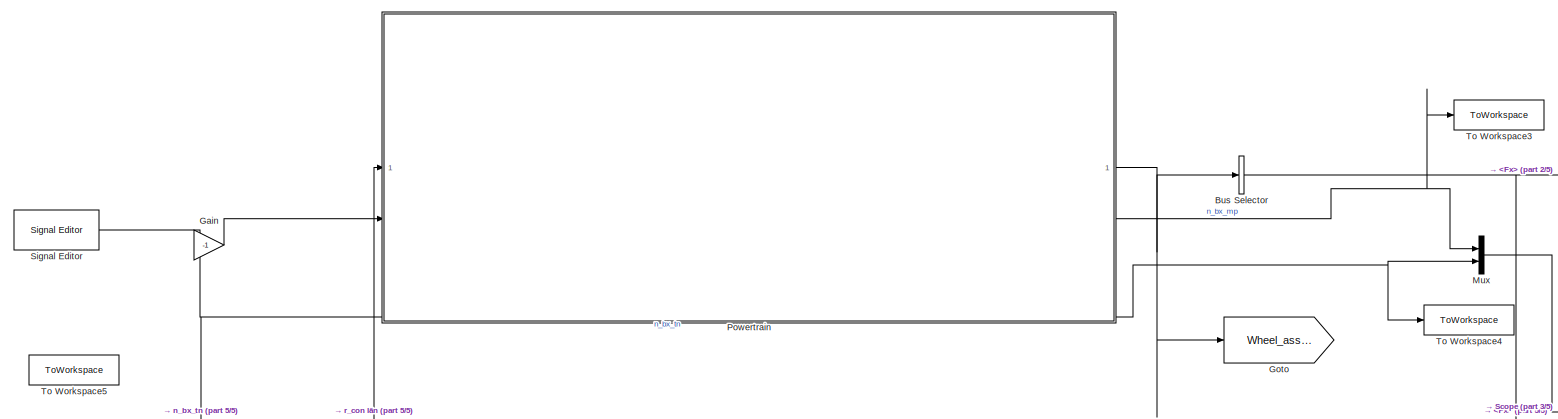
[diagram: root canvas - part 1/5, top left region]
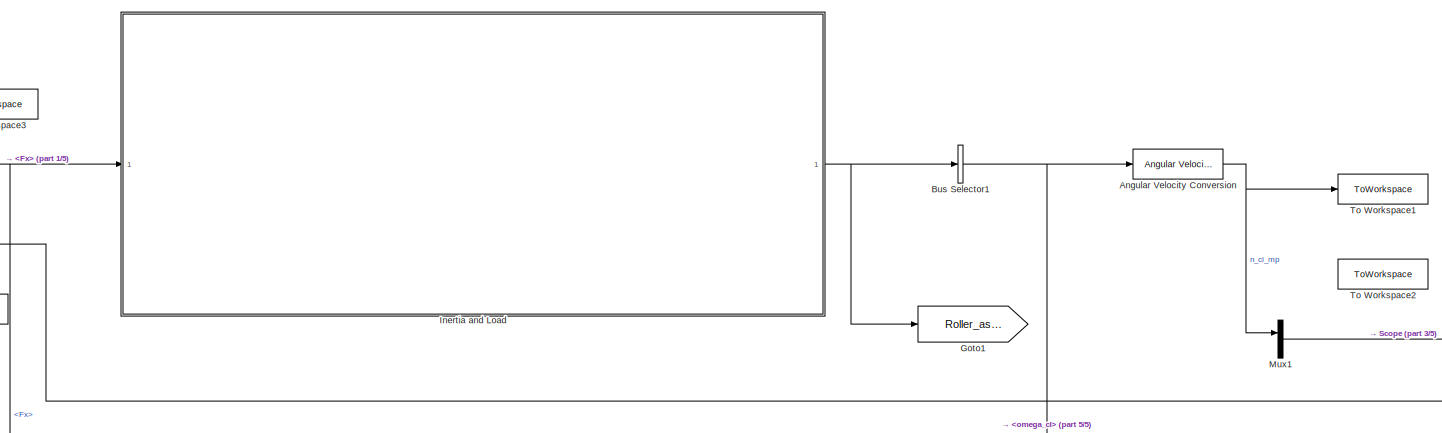
[diagram: root canvas - part 2/5, top right region]
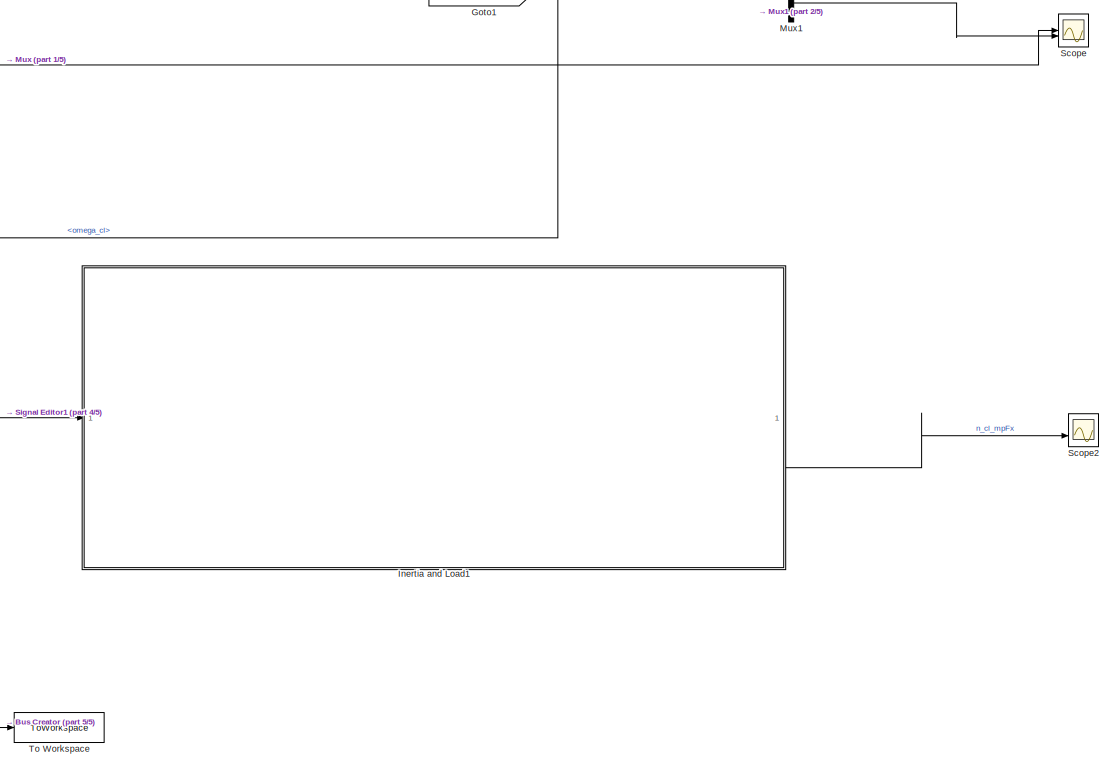
[diagram: root canvas - part 3/5, middle right region]
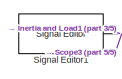
[diagram: root canvas - part 4/5, middle left region]
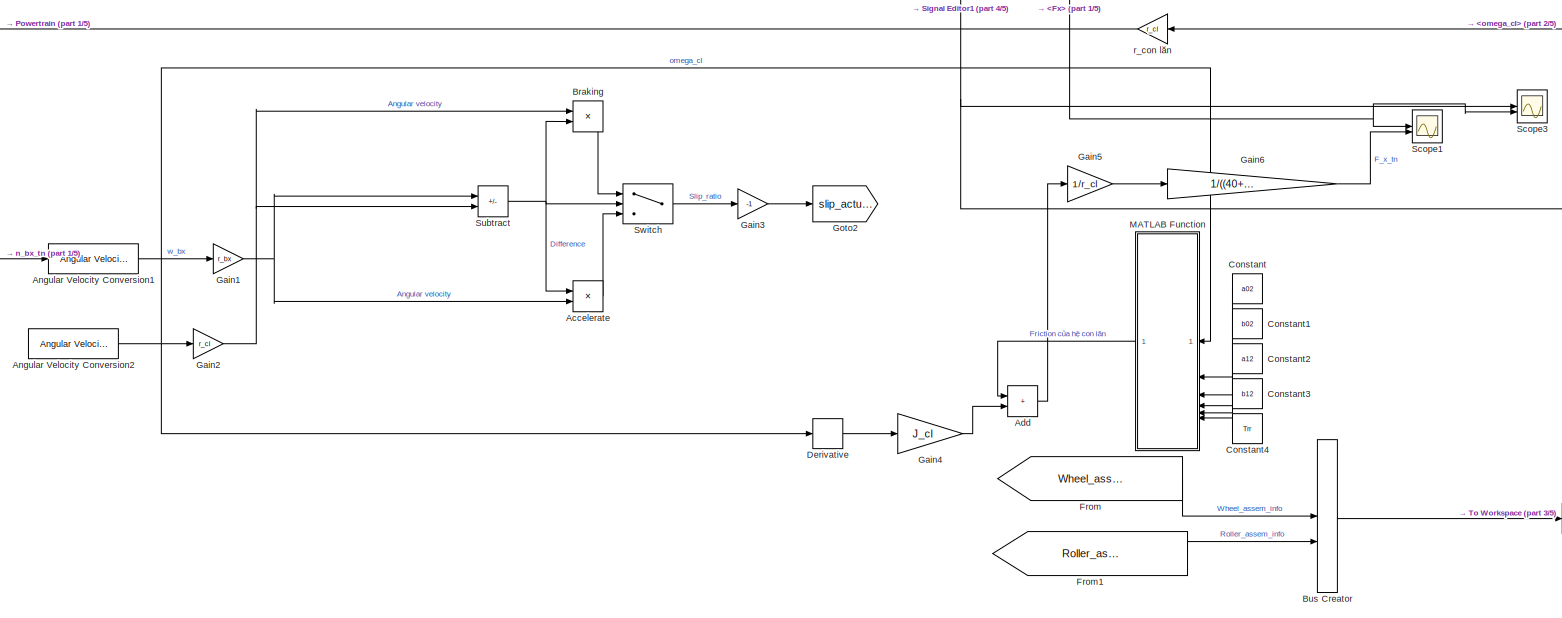
[diagram: root canvas - part 5/5, bottom center region]
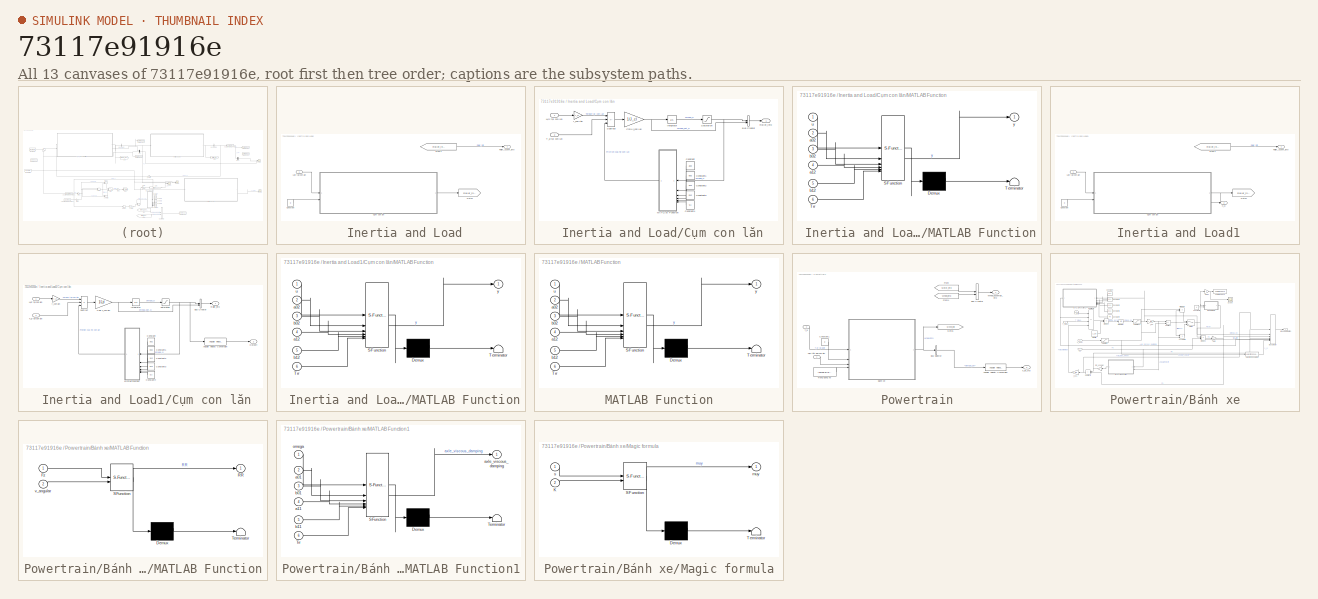
[diagram: thumbnail index - all 13 canvases of the model, root first then tree order]
MODEL slx_73117e91916e
KIND model
CONFIG AbsTol = 1e-3
CONFIG EnableMultiTasking = on
CONFIG FixedStep = 0.0001
CONFIG MaxStep = auto
CONFIG MinStep = auto
CONFIG RelTol = 1e-3
CONFIG SampleTimeConstraint = Unconstrained
CONFIG SolverName = FixedStepAuto
CONFIG StartTime = 0
CONFIG StopTime = 2.08
BLOCK [SubSystem]  Inertia and Load
BLOCK [Constant]  Inertia and Load/Constant
  Value = 0
BLOCK [SubSystem]  Inertia and Load/Cụm con lăn
BLOCK [BusCreator]  Inertia and Load/Cụm con lăn/Bus Creator
  DisplayOption = bar
  InheritFromInputs = on
  Inputs = 2
BLOCK [Gain]  Inertia and Load/Cụm con lăn/Chia J_con lăn
  Gain = 1/J_cl
BLOCK [Constant]  Inertia and Load/Cụm con lăn/Constant
  NameLocation = top
  Value = a02
BLOCK [Constant]  Inertia and Load/Cụm con lăn/Constant1
  NameLocation = top
  Value = b02
BLOCK [Constant]  Inertia and Load/Cụm con lăn/Constant2
  NameLocation = top
  Value = a12
BLOCK [Constant]  Inertia and Load/Cụm con lăn/Constant3
  NameLocation = top
  Value = b12
BLOCK [Constant]  Inertia and Load/Cụm con lăn/Constant4
  NameLocation = top
  Value = Trr
BLOCK [Integrator]  Inertia and Load/Cụm con lăn/Integrator
  InitialCondition = 39.4364
BLOCK [Inport]  Inertia and Load/Cụm con lăn/Lực tại con lăn
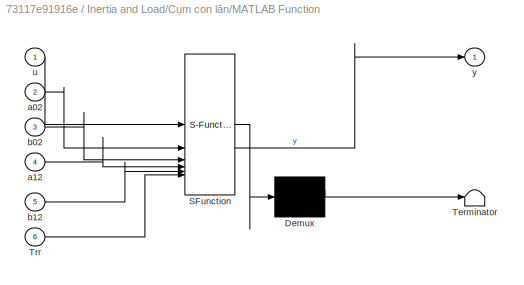
BLOCK [SubSystem]  Inertia and Load/Cụm con lăn/MATLAB Function
  ErrorFcn = Stateflow.Translate.translate
  NameLocation = top
  PermitHierarchicalResolution = ExplicitOnly
  SFBlockType = MATLAB Function
  TreatAsAtomicUnit = on
BLOCK [Demux]  Inertia and Load/Cụm con lăn/MATLAB Function/ Demux 
  Outputs = 1
BLOCK [S-Function]  Inertia and Load/Cụm con lăn/MATLAB Function/ SFunction 
  EnableBusSupport = on
  FunctionName = sf_sfun
  PortCounts = [6 2]
  SFcnIsStateOwnerBlock = off
  SFunctionDeploymentMode = off
  Tag = Stateflow S-Function 4
BLOCK [Terminator]  Inertia and Load/Cụm con lăn/MATLAB Function/ Terminator 
BLOCK [Inport]  Inertia and Load/Cụm con lăn/MATLAB Function/Trr
  Port = 6
BLOCK [Inport]  Inertia and Load/Cụm con lăn/MATLAB Function/a02
  Port = 2
BLOCK [Inport]  Inertia and Load/Cụm con lăn/MATLAB Function/a12
  Port = 4
BLOCK [Inport]  Inertia and Load/Cụm con lăn/MATLAB Function/b02
  Port = 3
BLOCK [Inport]  Inertia and Load/Cụm con lăn/MATLAB Function/b12
  Port = 5
BLOCK [Inport]  Inertia and Load/Cụm con lăn/MATLAB Function/u
BLOCK [Outport]  Inertia and Load/Cụm con lăn/MATLAB Function/y
BLOCK [Outport]  Inertia and Load/Cụm con lăn/Roller_info
BLOCK [Saturate]  Inertia and Load/Cụm con lăn/Saturation
  LowerLimit = 0
  UpperLimit = inf
BLOCK [Sum]  Inertia and Load/Cụm con lăn/Subtract
  IconShape = rectangular
  Inputs = ++-
BLOCK [Inport]  Inertia and Load/Cụm con lăn/T_g tại con lăn
  Port = 2
BLOCK [Gain]  Inertia and Load/Cụm con lăn/r_con lăn
  Gain = r_cl
BLOCK [From]  Inertia and Load/From1
  GotoTag = Roller_info
BLOCK [Goto]  Inertia and Load/Goto1
  GotoTag = Roller_info
BLOCK [Inport]  Inertia and Load/Lực tại con lăn
BLOCK [Outport]  Inertia and Load/Roller_Assem_info
BLOCK [SubSystem]  Inertia and Load1
BLOCK [Constant]  Inertia and Load1/Constant
  Value = 0
BLOCK [SubSystem]  Inertia and Load1/Cụm con lăn
BLOCK [Reference]  Inertia and Load1/Cụm con lăn/Angular Velocity Conversion  REF=aerolibconvert2/Angular Velocity
Conversion
  SourceBlock = aerolibconvert2/Angular Velocity\nConversion
  SourceType = Angular Velocity Conversion
BLOCK [BusCreator]  Inertia and Load1/Cụm con lăn/Bus Creator
  DisplayOption = bar
  InheritFromInputs = on
  Inputs = 2
BLOCK [Gain]  Inertia and Load1/Cụm con lăn/Chia J_con lăn
  Gain = 1/J_cl
BLOCK [Constant]  Inertia and Load1/Cụm con lăn/Constant
  NameLocation = top
  Value = a02
BLOCK [Constant]  Inertia and Load1/Cụm con lăn/Constant1
  NameLocation = top
  Value = b02
BLOCK [Constant]  Inertia and Load1/Cụm con lăn/Constant2
  NameLocation = top
  Value = a12
BLOCK [Constant]  Inertia and Load1/Cụm con lăn/Constant3
  NameLocation = top
  Value = b12
BLOCK [Constant]  Inertia and Load1/Cụm con lăn/Constant4
  NameLocation = top
  Value = Trr
BLOCK [Integrator]  Inertia and Load1/Cụm con lăn/Integrator
  InitialCondition = 39.4364
BLOCK [Inport]  Inertia and Load1/Cụm con lăn/Lực tại con lăn
BLOCK [SubSystem]  Inertia and Load1/Cụm con lăn/MATLAB Function
  ErrorFcn = Stateflow.Translate.translate
  NameLocation = top
  PermitHierarchicalResolution = ExplicitOnly
  SFBlockType = MATLAB Function
  TreatAsAtomicUnit = on
BLOCK [Demux]  Inertia and Load1/Cụm con lăn/MATLAB Function/ Demux 
  Outputs = 1
BLOCK [S-Function]  Inertia and Load1/Cụm con lăn/MATLAB Function/ SFunction 
  EnableBusSupport = on
  FunctionName = sf_sfun
  PortCounts = [6 2]
  SFcnIsStateOwnerBlock = off
  SFunctionDeploymentMode = off
  Tag = Stateflow S-Function 6
BLOCK [Terminator]  Inertia and Load1/Cụm con lăn/MATLAB Function/ Terminator 
BLOCK [Inport]  Inertia and Load1/Cụm con lăn/MATLAB Function/Trr
  Port = 6
BLOCK [Inport]  Inertia and Load1/Cụm con lăn/MATLAB Function/a02
  Port = 2
BLOCK [Inport]  Inertia and Load1/Cụm con lăn/MATLAB Function/a12
  Port = 4
BLOCK [Inport]  Inertia and Load1/Cụm con lăn/MATLAB Function/b02
  Port = 3
BLOCK [Inport]  Inertia and Load1/Cụm con lăn/MATLAB Function/b12
  Port = 5
BLOCK [Inport]  Inertia and Load1/Cụm con lăn/MATLAB Function/u
BLOCK [Outport]  Inertia and Load1/Cụm con lăn/MATLAB Function/y
BLOCK [Outport]  Inertia and Load1/Cụm con lăn/Outport
  Port = 2
BLOCK [Outport]  Inertia and Load1/Cụm con lăn/Roller_info
BLOCK [Saturate]  Inertia and Load1/Cụm con lăn/Saturation
  LowerLimit = 0
  UpperLimit = inf
BLOCK [Sum]  Inertia and Load1/Cụm con lăn/Subtract
  IconShape = rectangular
  Inputs = ++-
BLOCK [Inport]  Inertia and Load1/Cụm con lăn/T_g tại con lăn
  Port = 2
BLOCK [Gain]  Inertia and Load1/Cụm con lăn/r_con lăn
  Gain = r_cl
BLOCK [From]  Inertia and Load1/From1
  GotoTag = Roller_info
BLOCK [Goto]  Inertia and Load1/Goto1
  GotoTag = Roller_info
BLOCK [Inport]  Inertia and Load1/Lực tại con lăn
BLOCK [Outport]  Inertia and Load1/Roller_Assem_info
BLOCK [Outport]  Inertia and Load1/n_cl
  Port = 2
BLOCK [Product] Accelerate
  Inputs = */
BLOCK [Sum] Add
  IconShape = rectangular
BLOCK [Reference] Angular Velocity Conversion  REF=aerolibconvert2/Angular Velocity
Conversion
  SourceBlock = aerolibconvert2/Angular Velocity\nConversion
  SourceType = Angular Velocity Conversion
BLOCK [Reference] Angular Velocity Conversion1  REF=aerolibconvert2/Angular Velocity
Conversion
  SourceBlock = aerolibconvert2/Angular Velocity\nConversion
  SourceType = Angular Velocity Conversion
BLOCK [Reference] Angular Velocity Conversion2  REF=aerolibconvert2/Angular Velocity
Conversion
  SourceBlock = aerolibconvert2/Angular Velocity\nConversion
  SourceType = Angular Velocity Conversion
BLOCK [Product] Braking
  Inputs = /*
BLOCK [BusCreator] Bus Creator
  DisplayOption = bar
  InheritFromInputs = on
  Inputs = 2
BLOCK [BusSelector] Bus Selector
  OutputSignals = Wheel info.Fx
BLOCK [BusSelector] Bus Selector1
  OutputSignals = omega_cl
BLOCK [Constant] Constant
  NameLocation = top
  Value = a02
BLOCK [Constant] Constant1
  NameLocation = top
  Value = b02
BLOCK [Constant] Constant2
  NameLocation = top
  Value = a12
BLOCK [Constant] Constant3
  NameLocation = top
  Value = b12
BLOCK [Constant] Constant4
  NameLocation = top
  Value = Trr
BLOCK [Derivative] Derivative
BLOCK [From] From
  GotoTag = Wheel_assem_info
BLOCK [From] From1
  GotoTag = Roller_assem_info
BLOCK [Gain] Gain
  Gain = -1
BLOCK [Gain] Gain1
  Gain = r_bx
BLOCK [Gain] Gain2
  Gain = r_cl
BLOCK [Gain] Gain3
  Gain = -1
BLOCK [Gain] Gain4
  Gain = J_cl
BLOCK [Gain] Gain5
  Gain = 1/r_cl
BLOCK [Gain] Gain6
  Gain = 1/((40+18.6)*9.81)
BLOCK [Goto] Goto
  GotoTag = Wheel_assem_info
BLOCK [Goto] Goto1
  GotoTag = Roller_assem_info
BLOCK [Goto] Goto2
  GotoTag = slip_actual
  TagVisibility = global
BLOCK [SubSystem] MATLAB Function
  ErrorFcn = Stateflow.Translate.translate
  NameLocation = top
  PermitHierarchicalResolution = ExplicitOnly
  SFBlockType = MATLAB Function
  TreatAsAtomicUnit = on
BLOCK [Demux] MATLAB Function/ Demux 
  Outputs = 1
BLOCK [S-Function] MATLAB Function/ SFunction 
  EnableBusSupport = on
  FunctionName = sf_sfun
  PortCounts = [6 2]
  SFcnIsStateOwnerBlock = off
  SFunctionDeploymentMode = off
  Tag = Stateflow S-Function 5
BLOCK [Terminator] MATLAB Function/ Terminator 
BLOCK [Inport] MATLAB Function/Trr
  Port = 6
BLOCK [Inport] MATLAB Function/a02
  Port = 2
BLOCK [Inport] MATLAB Function/a12
  Port = 4
BLOCK [Inport] MATLAB Function/b02
  Port = 3
BLOCK [Inport] MATLAB Function/b12
  Port = 5
BLOCK [Inport] MATLAB Function/u
BLOCK [Outport] MATLAB Function/y
BLOCK [Mux] Mux
  DisplayOption = bar
  Inputs = 2
BLOCK [Mux] Mux1
  DisplayOption = bar
  Inputs = 2
BLOCK [SubSystem] Powertrain
BLOCK [Reference] Powertrain/Angular Velocity Conversion  REF=aerolibconvert2/Angular Velocity
Conversion
  SourceBlock = aerolibconvert2/Angular Velocity\nConversion
  SourceType = Angular Velocity Conversion
BLOCK [BusCreator] Powertrain/Bus Creator
  DisplayOption = bar
  InheritFromInputs = on
  Inputs = 2
BLOCK [BusSelector] Powertrain/Bus Selector
  OutputSignals = Omega_bx
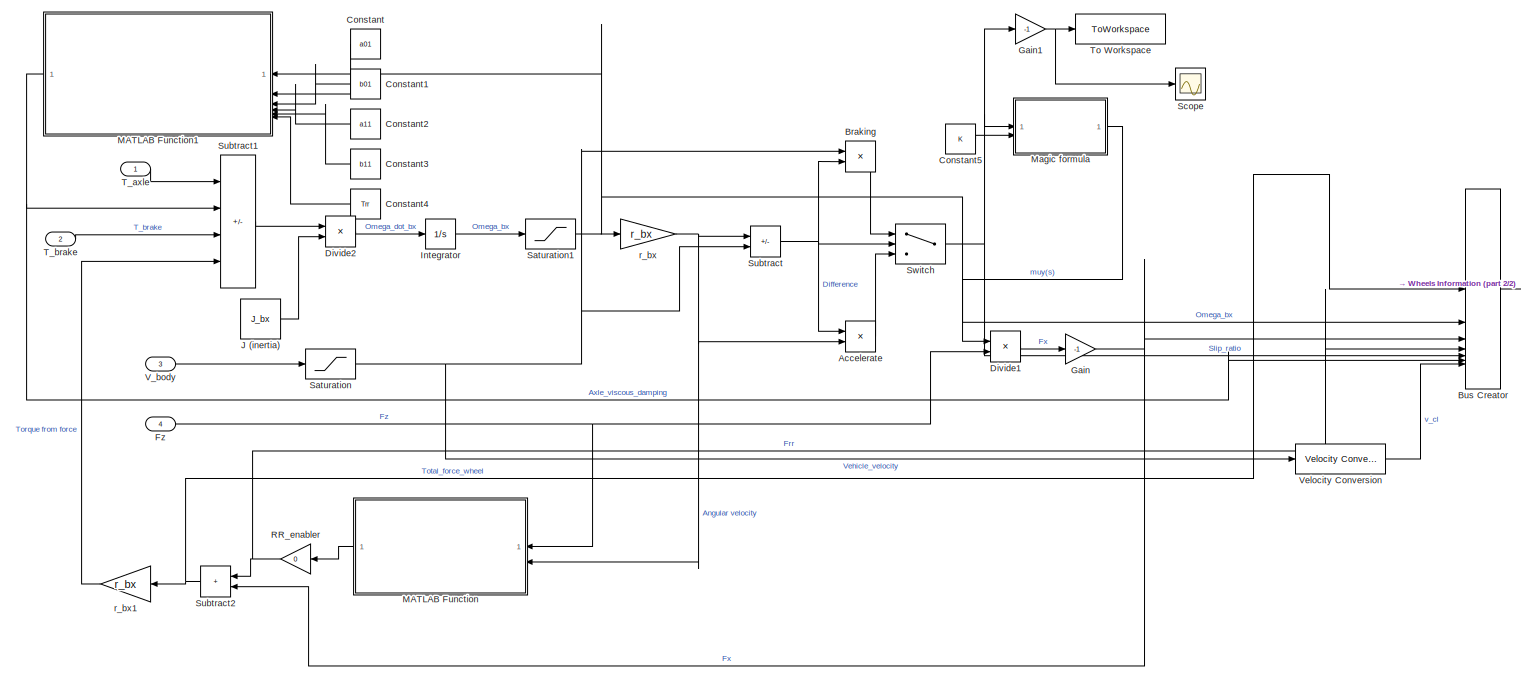
[diagram: Powertrain/Bánh xe - part 1/2, most of the canvas]
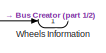
[diagram: Powertrain/Bánh xe - part 2/2, middle right region]
BLOCK [SubSystem] Powertrain/Bánh xe
BLOCK [Product] Powertrain/Bánh xe/Accelerate
  Inputs = */
BLOCK [Product] Powertrain/Bánh xe/Braking
  Inputs = /*
BLOCK [BusCreator] Powertrain/Bánh xe/Bus Creator
  DisplayOption = bar
  InheritFromInputs = on
  Inputs = 7
BLOCK [Constant] Powertrain/Bánh xe/Constant
  NameLocation = top
  Value = a01
BLOCK [Constant] Powertrain/Bánh xe/Constant1
  NameLocation = top
  Value = b01
BLOCK [Constant] Powertrain/Bánh xe/Constant2
  NameLocation = top
  Value = a11
BLOCK [Constant] Powertrain/Bánh xe/Constant3
  NameLocation = top
  Value = b11
BLOCK [Constant] Powertrain/Bánh xe/Constant4
  NameLocation = top
  Value = Trr
BLOCK [Constant] Powertrain/Bánh xe/Constant5
  Value = K
BLOCK [Product] Powertrain/Bánh xe/Divide1
  Inputs = **
BLOCK [Product] Powertrain/Bánh xe/Divide2
  Inputs = */
BLOCK [Inport] Powertrain/Bánh xe/Fz
  Port = 4
BLOCK [Gain] Powertrain/Bánh xe/Gain
  Gain = -1
BLOCK [Gain] Powertrain/Bánh xe/Gain1
  Gain = -1
BLOCK [Integrator] Powertrain/Bánh xe/Integrator
  InitialCondition = 16.3518
BLOCK [Constant] Powertrain/Bánh xe/J (inertia)
  Value = J_bx
BLOCK [SubSystem] Powertrain/Bánh xe/MATLAB Function
  ErrorFcn = Stateflow.Translate.translate
  NameLocation = top
  PermitHierarchicalResolution = ExplicitOnly
  SFBlockType = MATLAB Function
  TreatAsAtomicUnit = on
BLOCK [Demux] Powertrain/Bánh xe/MATLAB Function/ Demux 
  Outputs = 1
BLOCK [S-Function] Powertrain/Bánh xe/MATLAB Function/ SFunction 
  EnableBusSupport = on
  FunctionName = sf_sfun
  PortCounts = [2 2]
  SFcnIsStateOwnerBlock = off
  SFunctionDeploymentMode = off
  Tag = Stateflow S-Function 1
BLOCK [Terminator] Powertrain/Bánh xe/MATLAB Function/ Terminator 
BLOCK [Inport] Powertrain/Bánh xe/MATLAB Function/Fz
BLOCK [Outport] Powertrain/Bánh xe/MATLAB Function/RR
BLOCK [Inport] Powertrain/Bánh xe/MATLAB Function/v_angular
  Port = 2
BLOCK [SubSystem] Powertrain/Bánh xe/MATLAB Function1
  ErrorFcn = Stateflow.Translate.translate
  NameLocation = top
  PermitHierarchicalResolution = ExplicitOnly
  SFBlockType = MATLAB Function
  TreatAsAtomicUnit = on
BLOCK [Demux] Powertrain/Bánh xe/MATLAB Function1/ Demux 
  Outputs = 1
BLOCK [S-Function] Powertrain/Bánh xe/MATLAB Function1/ SFunction 
  EnableBusSupport = on
  FunctionName = sf_sfun
  PortCounts = [6 2]
  SFcnIsStateOwnerBlock = off
  SFunctionDeploymentMode = off
  Tag = Stateflow S-Function 3
BLOCK [Terminator] Powertrain/Bánh xe/MATLAB Function1/ Terminator 
BLOCK [Inport] Powertrain/Bánh xe/MATLAB Function1/Trr
  Port = 6
BLOCK [Inport] Powertrain/Bánh xe/MATLAB Function1/a01
  Port = 2
BLOCK [Inport] Powertrain/Bánh xe/MATLAB Function1/a11
  Port = 4
BLOCK [Outport] Powertrain/Bánh xe/MATLAB Function1/axle_viscous_damping
BLOCK [Inport] Powertrain/Bánh xe/MATLAB Function1/b01
  Port = 3
BLOCK [Inport] Powertrain/Bánh xe/MATLAB Function1/b11
  Port = 5
BLOCK [Inport] Powertrain/Bánh xe/MATLAB Function1/omega
BLOCK [SubSystem] Powertrain/Bánh xe/Magic formula
  ErrorFcn = Stateflow.Translate.translate
  LibrarySourceBlock = simulink/User-Defined\nFunctions/MATLAB Function
  PermitHierarchicalResolution = ExplicitOnly
  SFBlockType = MATLAB Function
  TreatAsAtomicUnit = on
BLOCK [Demux] Powertrain/Bánh xe/Magic formula/ Demux 
  Outputs = 1
BLOCK [S-Function] Powertrain/Bánh xe/Magic formula/ SFunction 
  EnableBusSupport = on
  FunctionName = sf_sfun
  PortCounts = [2 2]
  SFcnIsStateOwnerBlock = off
  SFunctionDeploymentMode = off
  Tag = Stateflow S-Function 2
BLOCK [Terminator] Powertrain/Bánh xe/Magic formula/ Terminator 
BLOCK [Inport] Powertrain/Bánh xe/Magic formula/K
  Port = 2
BLOCK [Outport] Powertrain/Bánh xe/Magic formula/muy
BLOCK [Inport] Powertrain/Bánh xe/Magic formula/s
BLOCK [Gain] Powertrain/Bánh xe/RR_enabler
  Gain = 0
  NameLocation = top
BLOCK [Saturate] Powertrain/Bánh xe/Saturation
  LowerLimit = 0.00000000000000001
  UpperLimit = inf
BLOCK [Saturate] Powertrain/Bánh xe/Saturation1
  LowerLimit = 0.00000000000000001
  UpperLimit = inf
  ZeroCross = off
BLOCK [Scope] Powertrain/Bánh xe/Scope
  Floating = off
  NumInputPorts = 1
  ScopeSpecificationString = Simulink.scopes.TimeScopeBlockCfg('CurrentConfiguration', extmgr.ConfigurationSet(extmgr.Configuration('Core','General UI',true),extmgr.Configuration('Core','Source UI',true),extmgr.Configuration('Sources','WiredSimulink',true,'DataLoggingVariableName','ScopeData1'),extmgr.Configuration('Visuals','Time Domain',true,'SerializedDisplays',{struct('MinYLimReal','-0.11117','MaxYLimReal','0.15015','YLab...<+1511ch>
BLOCK [Sum] Powertrain/Bánh xe/Subtract
  IconShape = rectangular
  Inputs = -+
BLOCK [Sum] Powertrain/Bánh xe/Subtract1
  IconShape = rectangular
  Inputs = +---
BLOCK [Sum] Powertrain/Bánh xe/Subtract2
  IconShape = rectangular
  NameLocation = top
BLOCK [Switch] Powertrain/Bánh xe/Switch
  Criteria = u2 > Threshold
  InputSameDT = off
  SaturateOnIntegerOverflow = off
BLOCK [Inport] Powertrain/Bánh xe/T_axle
BLOCK [Inport] Powertrain/Bánh xe/T_brake
  Port = 2
BLOCK [ToWorkspace] Powertrain/Bánh xe/To Workspace
  FixptAsFi = on
  MaxDataPoints = inf
  SampleTime = -1
  SaveFormat = Timeseries
  VariableName = slip
BLOCK [Inport] Powertrain/Bánh xe/V_body
  Port = 3
BLOCK [Reference] Powertrain/Bánh xe/Velocity Conversion  REF=aerolibconvert2/Velocity Conversion
  SourceBlock = aerolibconvert2/Velocity Conversion
  SourceType = Velocity Conversion
BLOCK [Outport] Powertrain/Bánh xe/Wheels Information
BLOCK [Gain] Powertrain/Bánh xe/r_bx
  Gain = r_bx
BLOCK [Gain] Powertrain/Bánh xe/r_bx1
  Gain = r_bx
  NameLocation = top
BLOCK [Constant] Powertrain/Constant1
  Value = 0
BLOCK [From] Powertrain/From
  GotoTag = Motor_info
BLOCK [From] Powertrain/From1
  GotoTag = Wheel_info
BLOCK [Goto] Powertrain/Goto1
  GotoTag = Wheel_info
BLOCK [Inport] Powertrain/T_b
  Port = 2
BLOCK [Constant] Powertrain/Trong luong xe
  Value = (40+18.6)*9.81
BLOCK [Inport] Powertrain/Vận tốc dài con lăn
  NameLocation = top
BLOCK [Outport] Powertrain/Wheel_assembly_info
BLOCK [Outport] Powertrain/n_bx_mp
  Port = 2
BLOCK [Scope] Scope
  Floating = off
  NumInputPorts = 2
  ScopeSpecificationString = Simulink.scopes.TimeScopeBlockCfg('CurrentConfiguration', extmgr.ConfigurationSet(extmgr.Configuration('Core','General UI',true,'FigureColor',[1 1 1]),extmgr.Configuration('Core','Source UI',true),extmgr.Configuration('Sources','WiredSimulink',true),extmgr.Configuration('Visuals','Time Domain',true,'SerializedDisplays',{struct('MinYLimReal','5.8233','MaxYLimReal','178.0663','YLabelReal','','MinYLi...<+2404ch>
BLOCK [Scope] Scope1
  Floating = off
  NumInputPorts = 2
  ScopeSpecificationString = Simulink.scopes.TimeScopeBlockCfg('CurrentConfiguration', extmgr.ConfigurationSet(extmgr.Configuration('Core','General UI',true),extmgr.Configuration('Core','Source UI',true),extmgr.Configuration('Sources','WiredSimulink',true,'DataLoggingVariableName','ScopeData1'),extmgr.Configuration('Visuals','Time Domain',true,'SerializedDisplays',{struct('MinYLimReal','-830.58372','MaxYLimReal','818.64372','...<+1602ch>
BLOCK [Scope] Scope2
  Floating = off
  NumInputPorts = 2
  ScopeSpecificationString = Simulink.scopes.TimeScopeBlockCfg('CurrentConfiguration', extmgr.ConfigurationSet(extmgr.Configuration('Core','General UI',true),extmgr.Configuration('Core','Source UI',true),extmgr.Configuration('Sources','WiredSimulink',true,'DataLoggingVariableName','ScopeData2'),extmgr.Configuration('Visuals','Time Domain',true,'SerializedDisplays',{struct('MinYLimReal','51.34389','MaxYLimReal','419.32103','YL...<+1514ch>
BLOCK [Scope] Scope3
  Floating = off
  NumInputPorts = 2
  ScopeSpecificationString = Simulink.scopes.TimeScopeBlockCfg('CurrentConfiguration', extmgr.ConfigurationSet(extmgr.Configuration('Core','General UI',true),extmgr.Configuration('Core','Source UI',true),extmgr.Configuration('Sources','WiredSimulink',true,'DataLoggingVariableName','ScopeData3'),extmgr.Configuration('Visuals','Time Domain',true,'SerializedDisplays',{struct('MinYLimReal','-6475.18087','MaxYLimReal','1173.14674'...<+1528ch>
BLOCK [Reference] Signal Editor  REF=SignalEditorBlockLib/Signal Editor
  LibrarySourceBlock = simulink/Sources/Signal Editor
  SourceBlock = SignalEditorBlockLib/Signal Editor
  SourceType = SignalEditor
  UserDataPersistent = on
BLOCK [Reference] Signal Editor1  REF=SignalEditorBlockLib/Signal Editor
  LibrarySourceBlock = simulink/Sources/Signal Editor
  SourceBlock = SignalEditorBlockLib/Signal Editor
  SourceType = SignalEditor
  UserDataPersistent = on
BLOCK [Sum] Subtract
  IconShape = rectangular
  Inputs = -+
BLOCK [Switch] Switch
  Criteria = u2 > Threshold
  InputSameDT = off
  SaturateOnIntegerOverflow = off
BLOCK [ToWorkspace] To Workspace
  FixptAsFi = on
  MaxDataPoints = inf
  SampleTime = -1
  SaveFormat = Timeseries
  VariableName = Slip
BLOCK [ToWorkspace] To Workspace1
  FixptAsFi = on
  MaxDataPoints = inf
  SampleTime = -1
  SaveFormat = Timeseries
  VariableName = n_cl_mp
BLOCK [ToWorkspace] To Workspace2
  FixptAsFi = on
  MaxDataPoints = inf
  SampleTime = -1
  SaveFormat = Timeseries
  VariableName = n_cl_tn
BLOCK [ToWorkspace] To Workspace3
  FixptAsFi = on
  MaxDataPoints = inf
  SampleTime = -1
  SaveFormat = Timeseries
  VariableName = n_bx_mp
BLOCK [ToWorkspace] To Workspace4
  FixptAsFi = on
  MaxDataPoints = inf
  SampleTime = -1
  SaveFormat = Timeseries
  VariableName = n_bx_tn
BLOCK [ToWorkspace] To Workspace5
  FixptAsFi = on
  MaxDataPoints = inf
  SampleTime = -1
  SaveFormat = Timeseries
  VariableName = T_b
BLOCK [Gain] r_con lăn
  Gain = r_cl
  NameLocation = top
LINE  Inertia and Load/Constant:1 ->  Inertia and Load/Cụm con lăn:2
LINE  Inertia and Load/Cụm con lăn/Bus Creator:1 ->  Inertia and Load/Cụm con lăn/Roller_info:1
NET  Inertia and Load/Cụm con lăn/Chia J_con lăn:1 ->  Inertia and Load/Cụm con lăn/Bus Creator:2,  Inertia and Load/Cụm con lăn/Integrator:1
LINE  Inertia and Load/Cụm con lăn/Constant1:1 ->  Inertia and Load/Cụm con lăn/MATLAB Function:3
LINE  Inertia and Load/Cụm con lăn/Constant2:1 ->  Inertia and Load/Cụm con lăn/MATLAB Function:4
LINE  Inertia and Load/Cụm con lăn/Constant3:1 ->  Inertia and Load/Cụm con lăn/MATLAB Function:5
LINE  Inertia and Load/Cụm con lăn/Constant4:1 ->  Inertia and Load/Cụm con lăn/MATLAB Function:6
LINE  Inertia and Load/Cụm con lăn/Constant:1 ->  Inertia and Load/Cụm con lăn/MATLAB Function:2
LINE  Inertia and Load/Cụm con lăn/Integrator:1 ->  Inertia and Load/Cụm con lăn/Saturation:1
LINE  Inertia and Load/Cụm con lăn/Lực tại con lăn:1 ->  Inertia and Load/Cụm con lăn/r_con lăn:1
LINE  Inertia and Load/Cụm con lăn/MATLAB Function:1 ->  Inertia and Load/Cụm con lăn/Subtract:3
NET  Inertia and Load/Cụm con lăn/Saturation:1 ->  Inertia and Load/Cụm con lăn/Bus Creator:1,  Inertia and Load/Cụm con lăn/MATLAB Function:1
LINE  Inertia and Load/Cụm con lăn/Subtract:1 ->  Inertia and Load/Cụm con lăn/Chia J_con lăn:1
LINE  Inertia and Load/Cụm con lăn/T_g tại con lăn:1 ->  Inertia and Load/Cụm con lăn/Subtract:2
LINE  Inertia and Load/Cụm con lăn/r_con lăn:1 ->  Inertia and Load/Cụm con lăn/Subtract:1
LINE  Inertia and Load/Cụm con lăn:1 ->  Inertia and Load/Goto1:1
LINE  Inertia and Load/From1:1 ->  Inertia and Load/Roller_Assem_info:1
LINE  Inertia and Load/Lực tại con lăn:1 ->  Inertia and Load/Cụm con lăn:1
LINE  Inertia and Load1/Constant:1 ->  Inertia and Load1/Cụm con lăn:2
LINE  Inertia and Load1/Cụm con lăn/Angular Velocity Conversion:1 ->  Inertia and Load1/Cụm con lăn/Outport:1
LINE  Inertia and Load1/Cụm con lăn/Bus Creator:1 ->  Inertia and Load1/Cụm con lăn/Roller_info:1
NET  Inertia and Load1/Cụm con lăn/Chia J_con lăn:1 ->  Inertia and Load1/Cụm con lăn/Bus Creator:2,  Inertia and Load1/Cụm con lăn/Integrator:1
LINE  Inertia and Load1/Cụm con lăn/Constant1:1 ->  Inertia and Load1/Cụm con lăn/MATLAB Function:3
LINE  Inertia and Load1/Cụm con lăn/Constant2:1 ->  Inertia and Load1/Cụm con lăn/MATLAB Function:4
LINE  Inertia and Load1/Cụm con lăn/Constant3:1 ->  Inertia and Load1/Cụm con lăn/MATLAB Function:5
LINE  Inertia and Load1/Cụm con lăn/Constant4:1 ->  Inertia and Load1/Cụm con lăn/MATLAB Function:6
LINE  Inertia and Load1/Cụm con lăn/Constant:1 ->  Inertia and Load1/Cụm con lăn/MATLAB Function:2
LINE  Inertia and Load1/Cụm con lăn/Integrator:1 ->  Inertia and Load1/Cụm con lăn/Saturation:1
LINE  Inertia and Load1/Cụm con lăn/Lực tại con lăn:1 ->  Inertia and Load1/Cụm con lăn/r_con lăn:1
LINE  Inertia and Load1/Cụm con lăn/MATLAB Function:1 ->  Inertia and Load1/Cụm con lăn/Subtract:3
NET  Inertia and Load1/Cụm con lăn/Saturation:1 ->  Inertia and Load1/Cụm con lăn/Angular Velocity Conversion:1,  Inertia and Load1/Cụm con lăn/Bus Creator:1,  Inertia and Load1/Cụm con lăn/MATLAB Function:1
LINE  Inertia and Load1/Cụm con lăn/Subtract:1 ->  Inertia and Load1/Cụm con lăn/Chia J_con lăn:1
LINE  Inertia and Load1/Cụm con lăn/T_g tại con lăn:1 ->  Inertia and Load1/Cụm con lăn/Subtract:2
LINE  Inertia and Load1/Cụm con lăn/r_con lăn:1 ->  Inertia and Load1/Cụm con lăn/Subtract:1
LINE  Inertia and Load1/Cụm con lăn:1 ->  Inertia and Load1/Goto1:1
LINE  Inertia and Load1/Cụm con lăn:2 ->  Inertia and Load1/n_cl:1
LINE  Inertia and Load1/From1:1 ->  Inertia and Load1/Roller_Assem_info:1
LINE  Inertia and Load1/Lực tại con lăn:1 ->  Inertia and Load1/Cụm con lăn:1
LINE  Inertia and Load1:2 -> Scope2:2
NET  Inertia and Load:1 -> Bus Selector1:1, Goto1:1
LINE Accelerate:1 -> Switch:3
LINE Add:1 -> Gain5:1
LINE Angular Velocity Conversion1:1 -> Gain1:1
NET Angular Velocity Conversion2:1 -> Derivative:1, Gain2:1, MATLAB Function:1
NET Angular Velocity Conversion:1 -> Mux1:1, To Workspace1:1
LINE Braking:1 -> Switch:1
LINE Bus Creator:1 -> To Workspace:1
NET Bus Selector1:1 -> Angular Velocity Conversion:1, r_con lăn:1
NET Bus Selector:1 ->  Inertia and Load:1, Scope1:1, Scope3:2
LINE Constant1:1 -> MATLAB Function:3
LINE Constant2:1 -> MATLAB Function:4
LINE Constant3:1 -> MATLAB Function:5
LINE Constant4:1 -> MATLAB Function:6
LINE Constant:1 -> MATLAB Function:2
LINE Derivative:1 -> Gain4:1
LINE From1:1 -> Bus Creator:2
LINE From:1 -> Bus Creator:1
NET Gain1:1 -> Accelerate:2, Subtract:1
NET Gain2:1 -> Braking:1, Subtract:2
LINE Gain3:1 -> Goto2:1
LINE Gain4:1 -> Add:2
LINE Gain5:1 -> Gain6:1
LINE Gain6:1 -> Scope1:2
LINE Gain:1 -> Powertrain:2
LINE MATLAB Function:1 -> Add:1
LINE Mux1:1 -> Scope:2
LINE Mux:1 -> Scope:1
LINE Powertrain/Angular Velocity Conversion:1 -> Powertrain/n_bx_mp:1
LINE Powertrain/Bus Creator:1 -> Powertrain/Wheel_assembly_info:1
LINE Powertrain/Bus Selector:1 -> Powertrain/Angular Velocity Conversion:1
LINE Powertrain/Bánh xe/Accelerate:1 -> Powertrain/Bánh xe/Switch:3
LINE Powertrain/Bánh xe/Braking:1 -> Powertrain/Bánh xe/Switch:1
LINE Powertrain/Bánh xe/Bus Creator:1 -> Powertrain/Bánh xe/Wheels Information:1
LINE Powertrain/Bánh xe/Constant1:1 -> Powertrain/Bánh xe/MATLAB Function1:3
LINE Powertrain/Bánh xe/Constant2:1 -> Powertrain/Bánh xe/MATLAB Function1:4
LINE Powertrain/Bánh xe/Constant3:1 -> Powertrain/Bánh xe/MATLAB Function1:5
LINE Powertrain/Bánh xe/Constant4:1 -> Powertrain/Bánh xe/MATLAB Function1:6
LINE Powertrain/Bánh xe/Constant5:1 -> Powertrain/Bánh xe/Magic formula:2
LINE Powertrain/Bánh xe/Constant:1 -> Powertrain/Bánh xe/MATLAB Function1:2
LINE Powertrain/Bánh xe/Divide1:1 -> Powertrain/Bánh xe/Gain:1
LINE Powertrain/Bánh xe/Divide2:1 -> Powertrain/Bánh xe/Integrator:1
NET Powertrain/Bánh xe/Fz:1 -> Powertrain/Bánh xe/Divide1:2, Powertrain/Bánh xe/MATLAB Function:1
NET Powertrain/Bánh xe/Gain1:1 -> Powertrain/Bánh xe/Scope:1, Powertrain/Bánh xe/To Workspace:1
NET Powertrain/Bánh xe/Gain:1 -> Powertrain/Bánh xe/Bus Creator:3, Powertrain/Bánh xe/Subtract2:2
LINE Powertrain/Bánh xe/Integrator:1 -> Powertrain/Bánh xe/Saturation1:1
LINE Powertrain/Bánh xe/J (inertia):1 -> Powertrain/Bánh xe/Divide2:2
NET Powertrain/Bánh xe/MATLAB Function1:1 -> Powertrain/Bánh xe/Bus Creator:6, Powertrain/Bánh xe/Subtract1:2
LINE Powertrain/Bánh xe/MATLAB Function:1 -> Powertrain/Bánh xe/RR_enabler:1
LINE Powertrain/Bánh xe/Magic formula:1 -> Powertrain/Bánh xe/Divide1:1
NET Powertrain/Bánh xe/RR_enabler:1 -> Powertrain/Bánh xe/Bus Creator:4, Powertrain/Bánh xe/Subtract2:1
NET Powertrain/Bánh xe/Saturation1:1 -> Powertrain/Bánh xe/Bus Creator:2, Powertrain/Bánh xe/MATLAB Function1:1, Powertrain/Bánh xe/r_bx:1
NET Powertrain/Bánh xe/Saturation:1 -> Powertrain/Bánh xe/Braking:1, Powertrain/Bánh xe/Subtract:2, Powertrain/Bánh xe/Velocity Conversion:1
LINE Powertrain/Bánh xe/Subtract1:1 -> Powertrain/Bánh xe/Divide2:1
NET Powertrain/Bánh xe/Subtract2:1 -> Powertrain/Bánh xe/Bus Creator:1, Powertrain/Bánh xe/r_bx1:1
NET Powertrain/Bánh xe/Subtract:1 -> Powertrain/Bánh xe/Accelerate:1, Powertrain/Bánh xe/Braking:2, Powertrain/Bánh xe/Switch:2
NET Powertrain/Bánh xe/Switch:1 -> Powertrain/Bánh xe/Bus Creator:5, Powertrain/Bánh xe/Gain1:1, Powertrain/Bánh xe/Magic formula:1
LINE Powertrain/Bánh xe/T_axle:1 -> Powertrain/Bánh xe/Subtract1:1
LINE Powertrain/Bánh xe/T_brake:1 -> Powertrain/Bánh xe/Subtract1:3
LINE Powertrain/Bánh xe/V_body:1 -> Powertrain/Bánh xe/Saturation:1
LINE Powertrain/Bánh xe/Velocity Conversion:1 -> Powertrain/Bánh xe/Bus Creator:7
LINE Powertrain/Bánh xe/r_bx1:1 -> Powertrain/Bánh xe/Subtract1:4
NET Powertrain/Bánh xe/r_bx:1 -> Powertrain/Bánh xe/Accelerate:2, Powertrain/Bánh xe/MATLAB Function:2, Powertrain/Bánh xe/Subtract:1
NET Powertrain/Bánh xe:1 -> Powertrain/Bus Selector:1, Powertrain/Goto1:1
LINE Powertrain/Constant1:1 -> Powertrain/Bánh xe:2
LINE Powertrain/From1:1 -> Powertrain/Bus Creator:2
LINE Powertrain/From:1 -> Powertrain/Bus Creator:1
LINE Powertrain/T_b:1 -> Powertrain/Bánh xe:1
LINE Powertrain/Trong luong xe:1 -> Powertrain/Bánh xe:4
LINE Powertrain/Vận tốc dài con lăn:1 -> Powertrain/Bánh xe:3
NET Powertrain:1 -> Bus Selector:1, Goto:1
NET Powertrain:2 -> Mux:1, To Workspace3:1
NET Signal Editor1:1 ->  Inertia and Load1:1, Scope3:1
NET Signal Editor:1 -> Angular Velocity Conversion1:1, Mux:2, To Workspace4:1
NET Subtract:1 -> Accelerate:1, Braking:2, Switch:2
LINE Switch:1 -> Gain3:1
LINE r_con lăn:1 -> Powertrain:1
note: NET lines group one-source signal fan-out (src -> all destinations, sorted); 1:1 wires keep LINE
CHART Powertrain/Bánh xe/MATLAB Function states=1 transitions=1
  STATE_LABEL 'eML_blk_kernel()'
  STATE_LABEL 'SCRIPT:\nfunction RR = rolling_resistance_function(Fz,v_angular)\n\nRR = (0.015+7*10^(-6)*v_angular^2)*Fz;\n'
CHART Powertrain/Bánh xe/Magic formula states=1 transitions=1
  STATE_LABEL 'eML_blk_kernel()'
  STATE_LABEL 'SCRIPT:\nfunction muy = magicformula(s, K)\n% Khai báo hằng số mặt đường\nB = 12;\nC = 2.3;\nD = 0.82;\nE = 1;\n% Magic formula\nmuy = K * D * sin(C * atan(B * s - E * (B * s - atan(B * s))));\n'
CHART Powertrain/Bánh xe/MATLAB Function1 states=1 transitions=1
  STATE_LABEL 'eML_blk_kernel()'
  STATE_LABEL 'SCRIPT:\nfunction axle_viscous_damping = fcn(omega, a01, b01, a11, b11, Trr)\n    axle_viscous_damping=0.0362*(a01*(omega)+b01)*15 + (a11*omega + b11) + Trr;\n'
CHART  Inertia and Load/Cụm con lăn/MATLAB Function states=1 transitions=1
  STATE_LABEL 'eML_blk_kernel()'
  STATE_LABEL 'SCRIPT:\nfunction y = fcn(u,a02,b02,a12,b12,Trr)\n\ny = 0.0362*(a02*u+b02)*2 + (a12*u+b12) + Trr;\n'
CHART MATLAB Function states=1 transitions=1
  STATE_LABEL 'eML_blk_kernel()'
  STATE_LABEL 'SCRIPT:\nfunction y = fcn(u,a02,b02,a12,b12,Trr)\n\ny = 0.0362*(a02*u+b02)*2 + (a12*u+b12) + Trr;\n'
CHART  Inertia and Load1/Cụm con lăn/MATLAB Function states=1 transitions=1
  STATE_LABEL 'eML_blk_kernel()'
  STATE_LABEL 'SCRIPT:\nfunction y = fcn(u,a02,b02,a12,b12,Trr)\n\ny = 0.0362*(a02*u+b02)*2 + (a12*u+b12) + Trr;\n'
CHART  states=0 transitions=0
CHART  states=0 transitions=0
CHART  states=0 transitions=0
CHART  states=0 transitions=0
CHART  states=0 transitions=0
CHART  states=0 transitions=0
